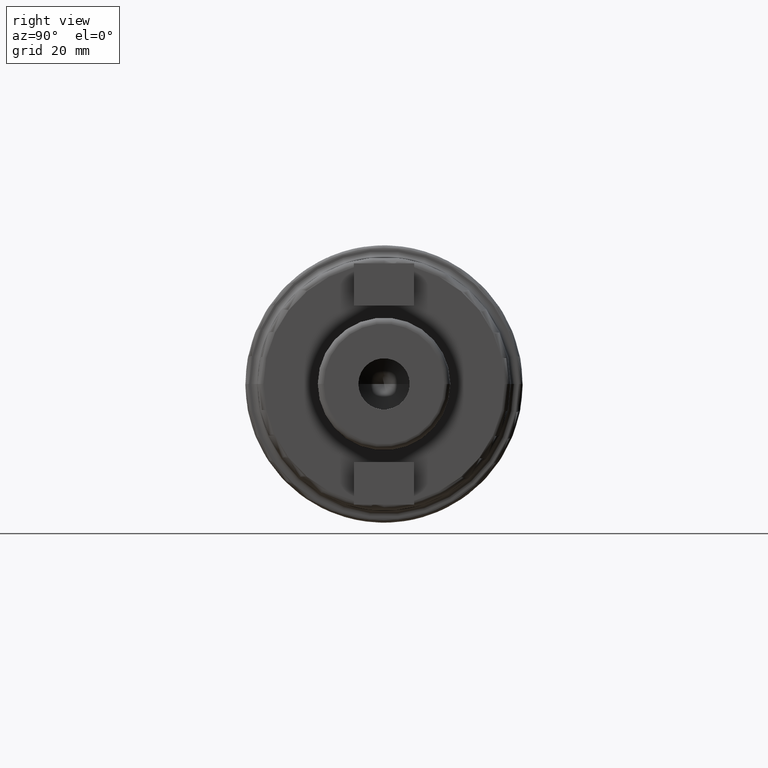
[diagram: clean part render]
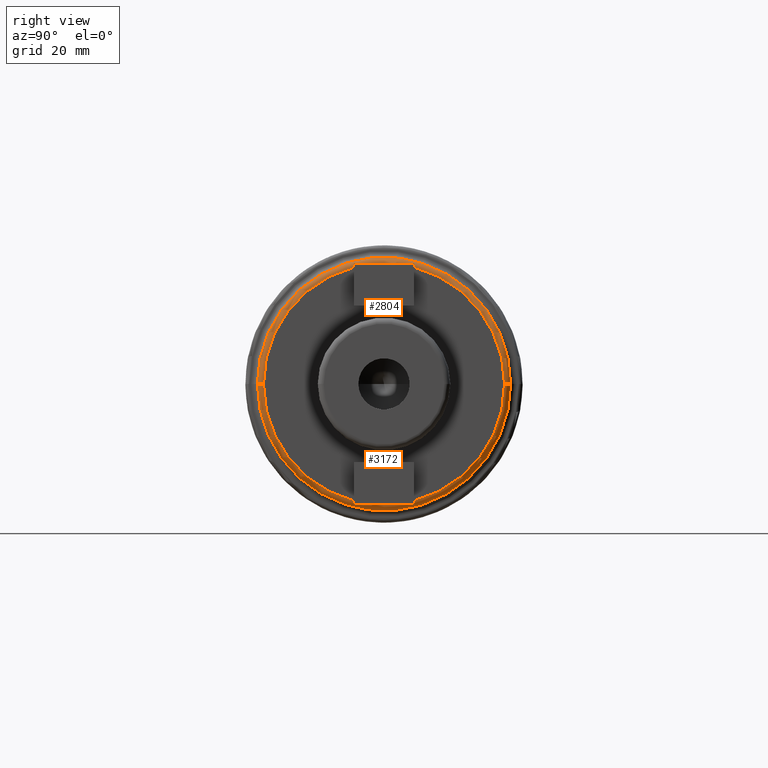
[diagram: same view with one multi-face feature highlighted, each face labeled with its STEP entity id]
A machine part, right view. The highlighted faces form ONE feature: a constant-radius fillet chain: 2 tangent blend faces with common blend radius 1 mm. The faces share edges in the B-rep.
Their STEP definitions:
[1] entity #3172 (Torus):
#862=CARTESIAN_POINT('',(3.4E1,-2.E1,-1.029243357209E-11));
#863=DIRECTION('',(0.E0,-5.146204642981E-13,1.E0));
#864=DIRECTION('',(0.E0,-1.E0,-5.146204642981E-13));
#865=AXIS2_PLACEMENT_3D('',#862,#863,#864);
#930=CARTESIAN_POINT('',(3.5E1,0.E0,0.E0));
#931=DIRECTION('',(-1.E0,0.E0,0.E0));
#932=DIRECTION('',(0.E0,1.E0,0.E0));
#933=AXIS2_PLACEMENT_3D('',#930,#931,#932);
#947=CARTESIAN_POINT('',(3.5E1,0.E0,0.E0));
#948=DIRECTION('',(-1.E0,0.E0,0.E0));
#949=DIRECTION('',(0.E0,-2.5E-1,-9.682458365519E-1));
#950=AXIS2_PLACEMENT_3D('',#947,#948,#949);
#1091=CARTESIAN_POINT('',(3.5E1,0.E0,0.E0));
#1092=DIRECTION('',(1.E0,0.E0,0.E0));
#1093=DIRECTION('',(0.E0,-2.5E-1,-9.682458365519E-1));
#1094=AXIS2_PLACEMENT_3D('',#1091,#1092,#1093);
#1096=CARTESIAN_POINT('',(3.5E1,0.E0,0.E0));
#1097=DIRECTION('',(1.E0,0.E0,0.E0));
#1098=DIRECTION('',(0.E0,0.E0,-1.E0));
#1099=AXIS2_PLACEMENT_3D('',#1096,#1097,#1098);
#1101=CARTESIAN_POINT('',(3.4E1,2.E1,1.029643037498E-11));
#1102=DIRECTION('',(0.E0,5.148199574978E-13,-1.E0));
#1103=DIRECTION('',(0.E0,1.E0,5.148199574978E-13));
#1104=AXIS2_PLACEMENT_3D('',#1101,#1102,#1103);
#1106=CARTESIAN_POINT('',(3.4E1,0.E0,0.E0));
#1107=DIRECTION('',(-1.E0,0.E0,0.E0));
#1108=DIRECTION('',(0.E0,1.E0,0.E0));
#1109=AXIS2_PLACEMENT_3D('',#1106,#1107,#1108);
#1575=CARTESIAN_POINT('',(3.4E1,2.1E1,0.E0));
#1576=CARTESIAN_POINT('',(3.4E1,-2.1E1,0.E0));
#1577=VERTEX_POINT('',#1575);
#1578=VERTEX_POINT('',#1576);
#1587=CARTESIAN_POINT('',(3.5E1,-2.E1,-1.029243357209E-11));
#1588=VERTEX_POINT('',#1587);
#1589=CARTESIAN_POINT('',(3.5E1,2.E1,1.029643037498E-11));
#1590=VERTEX_POINT('',#1589);
#1634=CARTESIAN_POINT('',(3.5E1,-5.E0,-1.936491673104E1));
#1636=VERTEX_POINT('',#1634);
#1637=CARTESIAN_POINT('',(3.5E1,5.E0,-1.936491673104E1));
#1639=VERTEX_POINT('',#1637);
#1643=CARTESIAN_POINT('',(3.5E1,-1.977074323811E-6,-2.E1));
#1644=VERTEX_POINT('',#1643);
#3157=CARTESIAN_POINT('',(3.4E1,0.E0,0.E0));
#3158=DIRECTION('',(1.E0,0.E0,0.E0));
#3159=DIRECTION('',(0.E0,9.999752152794E-1,7.040513262277E-3));
#3160=AXIS2_PLACEMENT_3D('',#3157,#3158,#3159);
#3161=TOROIDAL_SURFACE('',#3160,2.E1,1.E0);
#3162=ORIENTED_EDGE('',*,*,#2836,.T.);
#3163=ORIENTED_EDGE('',*,*,#2850,.T.);
#3164=ORIENTED_EDGE('',*,*,#2887,.F.);
#3165=ORIENTED_EDGE('',*,*,#2798,.F.);
#3167=ORIENTED_EDGE('',*,*,#3166,.T.);
#3168=ORIENTED_EDGE('',*,*,#2795,.T.);
#3169=ORIENTED_EDGE('',*,*,#2895,.F.);
#3170=EDGE_LOOP('',(#3162,#3163,#3164,#3165,#3167,#3168,#3169));
#3171=FACE_OUTER_BOUND('',#3170,.F.);
#3172=ADVANCED_FACE('',(#3171),#3161,.T.);
#866=CIRCLE('',#865,1.E0);
#934=CIRCLE('',#933,2.E1);
#951=CIRCLE('',#950,2.E1);
#1095=CIRCLE('',#1094,2.E1);
#1100=CIRCLE('',#1099,2.E1);
#1105=CIRCLE('',#1104,1.E0);
#1110=CIRCLE('',#1109,2.1E1);
#2795=EDGE_CURVE('',#1578,#1588,#866,.T.);
#2798=EDGE_CURVE('',#1577,#1590,#1105,.T.);
#2836=EDGE_CURVE('',#1636,#1644,#1095,.T.);
#2850=EDGE_CURVE('',#1644,#1639,#1100,.T.);
#2887=EDGE_CURVE('',#1590,#1639,#934,.T.);
#2895=EDGE_CURVE('',#1636,#1588,#951,.T.);
#3166=EDGE_CURVE('',#1577,#1578,#1110,.T.);
[2] entity #2804 (Torus):
#842=CARTESIAN_POINT('',(3.4E1,0.E0,0.E0));
#843=DIRECTION('',(-1.E0,0.E0,0.E0));
#844=DIRECTION('',(0.E0,-1.E0,0.E0));
#845=AXIS2_PLACEMENT_3D('',#842,#843,#844);
#852=CARTESIAN_POINT('',(3.5E1,0.E0,0.E0));
#853=DIRECTION('',(1.E0,0.E0,0.E0));
#854=DIRECTION('',(0.E0,2.5E-1,9.682458365519E-1));
#855=AXIS2_PLACEMENT_3D('',#852,#853,#854);
#857=CARTESIAN_POINT('',(3.5E1,0.E0,0.E0));
#858=DIRECTION('',(1.E0,0.E0,0.E0));
#859=DIRECTION('',(0.E0,0.E0,1.E0));
#860=AXIS2_PLACEMENT_3D('',#857,#858,#859);
#862=CARTESIAN_POINT('',(3.4E1,-2.E1,-1.029243357209E-11));
#863=DIRECTION('',(0.E0,-5.146204642981E-13,1.E0));
#864=DIRECTION('',(0.E0,-1.E0,-5.146204642981E-13));
#865=AXIS2_PLACEMENT_3D('',#862,#863,#864);
#925=CARTESIAN_POINT('',(3.5E1,0.E0,0.E0));
#926=DIRECTION('',(-1.E0,0.E0,0.E0));
#927=DIRECTION('',(0.E0,2.5E-1,9.682458365519E-1));
#928=AXIS2_PLACEMENT_3D('',#925,#926,#927);
#952=CARTESIAN_POINT('',(3.5E1,0.E0,0.E0));
#953=DIRECTION('',(-1.E0,0.E0,0.E0));
#954=DIRECTION('',(0.E0,-1.E0,0.E0));
#955=AXIS2_PLACEMENT_3D('',#952,#953,#954);
#1101=CARTESIAN_POINT('',(3.4E1,2.E1,1.029643037498E-11));
#1102=DIRECTION('',(0.E0,5.148199574978E-13,-1.E0));
#1103=DIRECTION('',(0.E0,1.E0,5.148199574978E-13));
#1104=AXIS2_PLACEMENT_3D('',#1101,#1102,#1103);
#1575=CARTESIAN_POINT('',(3.4E1,2.1E1,0.E0));
#1576=CARTESIAN_POINT('',(3.4E1,-2.1E1,0.E0));
#1577=VERTEX_POINT('',#1575);
#1578=VERTEX_POINT('',#1576);
#1587=CARTESIAN_POINT('',(3.5E1,-2.E1,-1.029243357209E-11));
#1588=VERTEX_POINT('',#1587);
#1589=CARTESIAN_POINT('',(3.5E1,2.E1,1.029643037498E-11));
#1590=VERTEX_POINT('',#1589);
#1625=CARTESIAN_POINT('',(3.5E1,-5.E0,1.936491673104E1));
#1627=VERTEX_POINT('',#1625);
#1631=CARTESIAN_POINT('',(3.5E1,5.E0,1.936491673104E1));
#1632=VERTEX_POINT('',#1631);
#1641=CARTESIAN_POINT('',(3.5E1,1.975402654786E-6,2.E1));
#1642=VERTEX_POINT('',#1641);
#2784=CARTESIAN_POINT('',(3.4E1,0.E0,0.E0));
#2785=DIRECTION('',(1.E0,0.E0,0.E0));
#2786=DIRECTION('',(0.E0,-9.999752152794E-1,-7.040513262277E-3));
#2787=AXIS2_PLACEMENT_3D('',#2784,#2785,#2786);
#2788=TOROIDAL_SURFACE('',#2787,2.E1,1.E0);
#2790=ORIENTED_EDGE('',*,*,#2789,.T.);
#2792=ORIENTED_EDGE('',*,*,#2791,.T.);
#2794=ORIENTED_EDGE('',*,*,#2793,.F.);
#2796=ORIENTED_EDGE('',*,*,#2795,.F.);
#2797=ORIENTED_EDGE('',*,*,#2774,.T.);
#2799=ORIENTED_EDGE('',*,*,#2798,.T.);
#2801=ORIENTED_EDGE('',*,*,#2800,.F.);
#2802=EDGE_LOOP('',(#2790,#2792,#2794,#2796,#2797,#2799,#2801));
#2803=FACE_OUTER_BOUND('',#2802,.F.);
#2804=ADVANCED_FACE('',(#2803),#2788,.T.);
#846=CIRCLE('',#845,2.1E1);
#856=CIRCLE('',#855,2.E1);
#861=CIRCLE('',#860,2.E1);
#866=CIRCLE('',#865,1.E0);
#929=CIRCLE('',#928,2.E1);
#956=CIRCLE('',#955,2.E1);
#1105=CIRCLE('',#1104,1.E0);
#2774=EDGE_CURVE('',#1578,#1577,#846,.T.);
#2789=EDGE_CURVE('',#1632,#1642,#856,.T.);
#2791=EDGE_CURVE('',#1642,#1627,#861,.T.);
#2793=EDGE_CURVE('',#1588,#1627,#956,.T.);
#2795=EDGE_CURVE('',#1578,#1588,#866,.T.);
#2798=EDGE_CURVE('',#1577,#1590,#1105,.T.);
#2800=EDGE_CURVE('',#1632,#1590,#929,.T.);